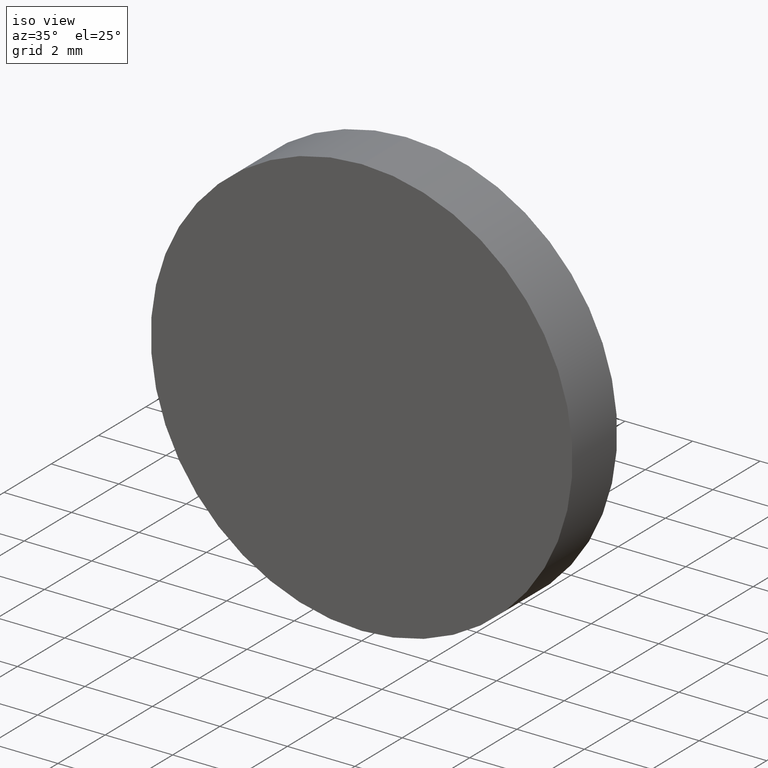
[diagram: clean part render]
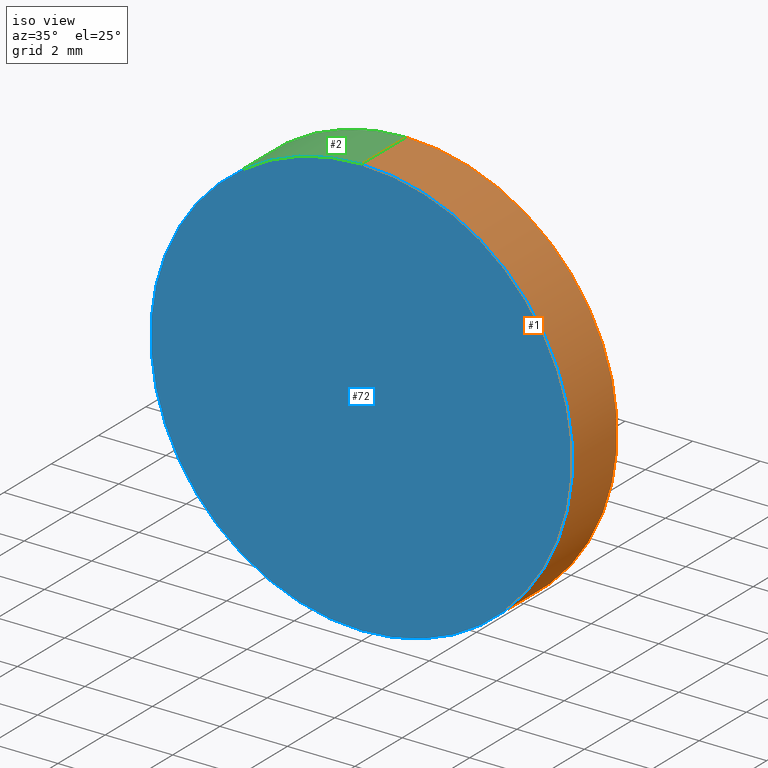
[diagram: same view with three faces highlighted in distinct colors, each labeled with its STEP entity id]
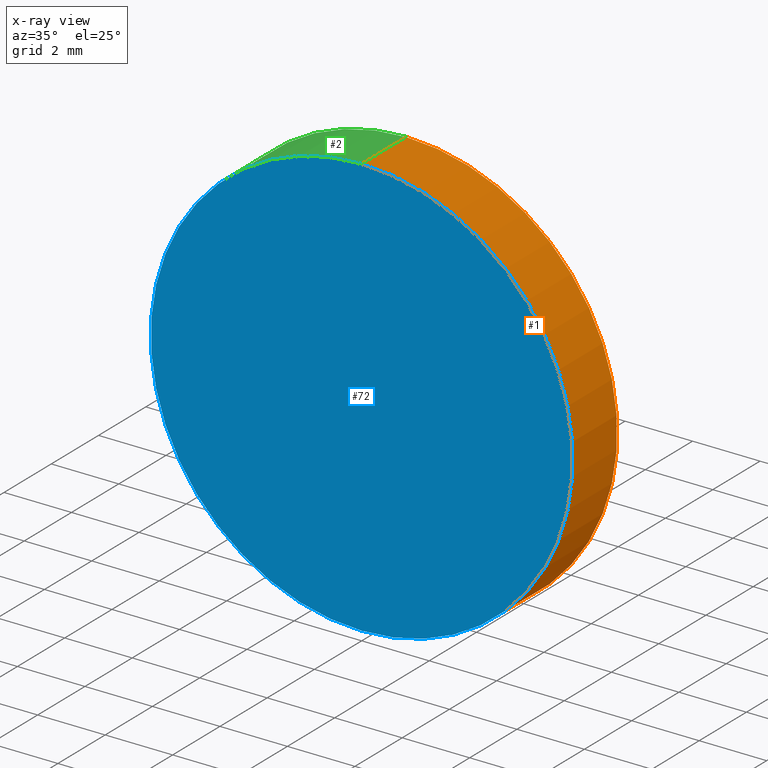
[diagram: x-ray of the same camera — body ghosted, the three highlighted faces saturated]
A machine part, iso view with three faces highlighted in distinct colors.
The next image is the same camera in x-ray (body ghosted, the three faces saturated) — at least one of them is partly hidden behind the body in this view.
Their STEP definitions:

[orange] entity #1 — the highlighted cylindrical surface (partial cylindrical patch) has radius 6.25 mm, axis along (-0, -1, -0).
#1 = ADVANCED_FACE ( 'NONE', ( #85 ), #5, .T. ) ;
#5 = CYLINDRICAL_SURFACE ( 'NONE', #57, 6.250000000000000000 ) ;
#8 = DIRECTION ( 'NONE',  ( 0.0000000000000000000, 0.0000000000000000000, 1.000000000000000000 ) ) ;
#20 = DIRECTION ( 'NONE',  ( 0.0000000000000000000, 0.0000000000000000000, 1.000000000000000000 ) ) ;
#26 = AXIS2_PLACEMENT_3D ( 'NONE', #74, #83, #20 ) ;
#27 = LINE ( 'NONE', #51, #30 ) ;
#28 = LINE ( 'NONE', #108, #39 ) ;
#30 = VECTOR ( 'NONE', #32, 1000.000000000000000 ) ;
#32 = DIRECTION ( 'NONE',  ( -0.0000000000000000000, -1.000000000000000000, -0.0000000000000000000 ) ) ;
#37 = ORIENTED_EDGE ( 'NONE', *, *, #94, .T. ) ;
#39 = VECTOR ( 'NONE', #80, 1000.000000000000000 ) ;
#43 = VERTEX_POINT ( 'NONE', #135 ) ;
#49 = VERTEX_POINT ( 'NONE', #131 ) ;
#51 = CARTESIAN_POINT ( 'NONE',  ( 7.654042494670957600E-016, 1.889999999999999900, 6.250000000000000000 ) ) ;
#54 = VERTEX_POINT ( 'NONE', #137 ) ;
#55 = CIRCLE ( 'NONE', #98, 6.250000000000000000 ) ;
#56 = EDGE_LOOP ( 'NONE', ( #75, #37, #65, #102 ) ) ;
#57 = AXIS2_PLACEMENT_3D ( 'NONE', #89, #130, #103 ) ;
#65 = ORIENTED_EDGE ( 'NONE', *, *, #76, .T. ) ;
#67 = EDGE_CURVE ( 'NONE', #43, #49, #55, .T. ) ;
#74 = CARTESIAN_POINT ( 'NONE',  ( 0.0000000000000000000, 0.0000000000000000000, 0.0000000000000000000 ) ) ;
#75 = ORIENTED_EDGE ( 'NONE', *, *, #67, .F. ) ;
#76 = EDGE_CURVE ( 'NONE', #54, #100, #112, .T. ) ;
#80 = DIRECTION ( 'NONE',  ( -0.0000000000000000000, -1.000000000000000000, -0.0000000000000000000 ) ) ;
#83 = DIRECTION ( 'NONE',  ( 0.0000000000000000000, 1.000000000000000000, 0.0000000000000000000 ) ) ;
#85 = FACE_OUTER_BOUND ( 'NONE', #56, .T. ) ;
#89 = CARTESIAN_POINT ( 'NONE',  ( 0.0000000000000000000, 1.889999999999999900, 0.0000000000000000000 ) ) ;
#94 = EDGE_CURVE ( 'NONE', #43, #54, #27, .T. ) ;
#97 = DIRECTION ( 'NONE',  ( 0.0000000000000000000, 1.000000000000000000, 0.0000000000000000000 ) ) ;
#98 = AXIS2_PLACEMENT_3D ( 'NONE', #134, #97, #8 ) ;
#100 = VERTEX_POINT ( 'NONE', #124 ) ;
#102 = ORIENTED_EDGE ( 'NONE', *, *, #109, .F. ) ;
#103 = DIRECTION ( 'NONE',  ( 0.0000000000000000000, 0.0000000000000000000, -1.000000000000000000 ) ) ;
#108 = CARTESIAN_POINT ( 'NONE',  ( 0.0000000000000000000, 1.889999999999999900, -6.250000000000000000 ) ) ;
#109 = EDGE_CURVE ( 'NONE', #49, #100, #28, .T. ) ;
#112 = CIRCLE ( 'NONE', #26, 6.250000000000000000 ) ;
#124 = CARTESIAN_POINT ( 'NONE',  ( 0.0000000000000000000, 0.0000000000000000000, -6.250000000000000000 ) ) ;
#130 = DIRECTION ( 'NONE',  ( -0.0000000000000000000, -1.000000000000000000, -0.0000000000000000000 ) ) ;
#131 = CARTESIAN_POINT ( 'NONE',  ( 0.0000000000000000000, 1.889999999999999900, -6.250000000000000000 ) ) ;
#134 = CARTESIAN_POINT ( 'NONE',  ( 0.0000000000000000000, 1.889999999999999900, 0.0000000000000000000 ) ) ;
#135 = CARTESIAN_POINT ( 'NONE',  ( 7.654042494670957600E-016, 1.889999999999999900, 6.250000000000000000 ) ) ;
#137 = CARTESIAN_POINT ( 'NONE',  ( 7.654042494670957600E-016, 0.0000000000000000000, 6.250000000000000000 ) ) ;

[blue] entity #72 — the highlighted planar face has unit normal (0, 1, 0).
#18 = DIRECTION ( 'NONE',  ( 0.0000000000000000000, -0.0000000000000000000, 1.000000000000000000 ) ) ;
#20 = DIRECTION ( 'NONE',  ( 0.0000000000000000000, 0.0000000000000000000, 1.000000000000000000 ) ) ;
#22 = EDGE_LOOP ( 'NONE', ( #122, #111 ) ) ;
#26 = AXIS2_PLACEMENT_3D ( 'NONE', #74, #83, #20 ) ;
#36 = FACE_OUTER_BOUND ( 'NONE', #22, .T. ) ;
#54 = VERTEX_POINT ( 'NONE', #137 ) ;
#59 = AXIS2_PLACEMENT_3D ( 'NONE', #138, #123, #18 ) ;
#72 = ADVANCED_FACE ( 'NONE', ( #36 ), #133, .F. ) ;
#74 = CARTESIAN_POINT ( 'NONE',  ( 0.0000000000000000000, 0.0000000000000000000, 0.0000000000000000000 ) ) ;
#76 = EDGE_CURVE ( 'NONE', #54, #100, #112, .T. ) ;
#83 = DIRECTION ( 'NONE',  ( 0.0000000000000000000, 1.000000000000000000, 0.0000000000000000000 ) ) ;
#87 = EDGE_CURVE ( 'NONE', #100, #54, #110, .T. ) ;
#99 = AXIS2_PLACEMENT_3D ( 'NONE', #117, #118, #116 ) ;
#100 = VERTEX_POINT ( 'NONE', #124 ) ;
#110 = CIRCLE ( 'NONE', #99, 6.250000000000000000 ) ;
#111 = ORIENTED_EDGE ( 'NONE', *, *, #76, .F. ) ;
#112 = CIRCLE ( 'NONE', #26, 6.250000000000000000 ) ;
#116 = DIRECTION ( 'NONE',  ( 0.0000000000000000000, 0.0000000000000000000, 1.000000000000000000 ) ) ;
#117 = CARTESIAN_POINT ( 'NONE',  ( 0.0000000000000000000, 0.0000000000000000000, 0.0000000000000000000 ) ) ;
#118 = DIRECTION ( 'NONE',  ( 0.0000000000000000000, 1.000000000000000000, 0.0000000000000000000 ) ) ;
#122 = ORIENTED_EDGE ( 'NONE', *, *, #87, .F. ) ;
#123 = DIRECTION ( 'NONE',  ( 0.0000000000000000000, 1.000000000000000000, 0.0000000000000000000 ) ) ;
#124 = CARTESIAN_POINT ( 'NONE',  ( 0.0000000000000000000, 0.0000000000000000000, -6.250000000000000000 ) ) ;
#133 = PLANE ( 'NONE',  #59 ) ;
#137 = CARTESIAN_POINT ( 'NONE',  ( 7.654042494670957600E-016, 0.0000000000000000000, 6.250000000000000000 ) ) ;
#138 = CARTESIAN_POINT ( 'NONE',  ( 0.0000000000000000000, 0.0000000000000000000, 0.0000000000000000000 ) ) ;

[green] entity #2 — the highlighted cylindrical surface (partial cylindrical patch) has radius 6.25 mm, axis along (-0, -1, -0).
#2 = ADVANCED_FACE ( 'NONE', ( #7 ), #13, .T. ) ;
#3 = ORIENTED_EDGE ( 'NONE', *, *, #94, .F. ) ;
#7 = FACE_OUTER_BOUND ( 'NONE', #129, .T. ) ;
#10 = AXIS2_PLACEMENT_3D ( 'NONE', #11, #35, #33 ) ;
#11 = CARTESIAN_POINT ( 'NONE',  ( 0.0000000000000000000, 1.889999999999999900, 0.0000000000000000000 ) ) ;
#13 = CYLINDRICAL_SURFACE ( 'NONE', #48, 6.250000000000000000 ) ;
#23 = DIRECTION ( 'NONE',  ( 0.0000000000000000000, 0.0000000000000000000, -1.000000000000000000 ) ) ;
#27 = LINE ( 'NONE', #51, #30 ) ;
#28 = LINE ( 'NONE', #108, #39 ) ;
#30 = VECTOR ( 'NONE', #32, 1000.000000000000000 ) ;
#32 = DIRECTION ( 'NONE',  ( -0.0000000000000000000, -1.000000000000000000, -0.0000000000000000000 ) ) ;
#33 = DIRECTION ( 'NONE',  ( 0.0000000000000000000, 0.0000000000000000000, 1.000000000000000000 ) ) ;
#35 = DIRECTION ( 'NONE',  ( 0.0000000000000000000, 1.000000000000000000, 0.0000000000000000000 ) ) ;
#39 = VECTOR ( 'NONE', #80, 1000.000000000000000 ) ;
#42 = CARTESIAN_POINT ( 'NONE',  ( 0.0000000000000000000, 1.889999999999999900, 0.0000000000000000000 ) ) ;
#43 = VERTEX_POINT ( 'NONE', #135 ) ;
#48 = AXIS2_PLACEMENT_3D ( 'NONE', #42, #66, #23 ) ;
#49 = VERTEX_POINT ( 'NONE', #131 ) ;
#51 = CARTESIAN_POINT ( 'NONE',  ( 7.654042494670957600E-016, 1.889999999999999900, 6.250000000000000000 ) ) ;
#54 = VERTEX_POINT ( 'NONE', #137 ) ;
#66 = DIRECTION ( 'NONE',  ( -0.0000000000000000000, -1.000000000000000000, -0.0000000000000000000 ) ) ;
#78 = ORIENTED_EDGE ( 'NONE', *, *, #87, .T. ) ;
#79 = CIRCLE ( 'NONE', #10, 6.250000000000000000 ) ;
#80 = DIRECTION ( 'NONE',  ( -0.0000000000000000000, -1.000000000000000000, -0.0000000000000000000 ) ) ;
#82 = ORIENTED_EDGE ( 'NONE', *, *, #109, .T. ) ;
#86 = ORIENTED_EDGE ( 'NONE', *, *, #105, .F. ) ;
#87 = EDGE_CURVE ( 'NONE', #100, #54, #110, .T. ) ;
#94 = EDGE_CURVE ( 'NONE', #43, #54, #27, .T. ) ;
#99 = AXIS2_PLACEMENT_3D ( 'NONE', #117, #118, #116 ) ;
#100 = VERTEX_POINT ( 'NONE', #124 ) ;
#105 = EDGE_CURVE ( 'NONE', #49, #43, #79, .T. ) ;
#108 = CARTESIAN_POINT ( 'NONE',  ( 0.0000000000000000000, 1.889999999999999900, -6.250000000000000000 ) ) ;
#109 = EDGE_CURVE ( 'NONE', #49, #100, #28, .T. ) ;
#110 = CIRCLE ( 'NONE', #99, 6.250000000000000000 ) ;
#116 = DIRECTION ( 'NONE',  ( 0.0000000000000000000, 0.0000000000000000000, 1.000000000000000000 ) ) ;
#117 = CARTESIAN_POINT ( 'NONE',  ( 0.0000000000000000000, 0.0000000000000000000, 0.0000000000000000000 ) ) ;
#118 = DIRECTION ( 'NONE',  ( 0.0000000000000000000, 1.000000000000000000, 0.0000000000000000000 ) ) ;
#124 = CARTESIAN_POINT ( 'NONE',  ( 0.0000000000000000000, 0.0000000000000000000, -6.250000000000000000 ) ) ;
#129 = EDGE_LOOP ( 'NONE', ( #3, #86, #82, #78 ) ) ;
#131 = CARTESIAN_POINT ( 'NONE',  ( 0.0000000000000000000, 1.889999999999999900, -6.250000000000000000 ) ) ;
#135 = CARTESIAN_POINT ( 'NONE',  ( 7.654042494670957600E-016, 1.889999999999999900, 6.250000000000000000 ) ) ;
#137 = CARTESIAN_POINT ( 'NONE',  ( 7.654042494670957600E-016, 0.0000000000000000000, 6.250000000000000000 ) ) ;